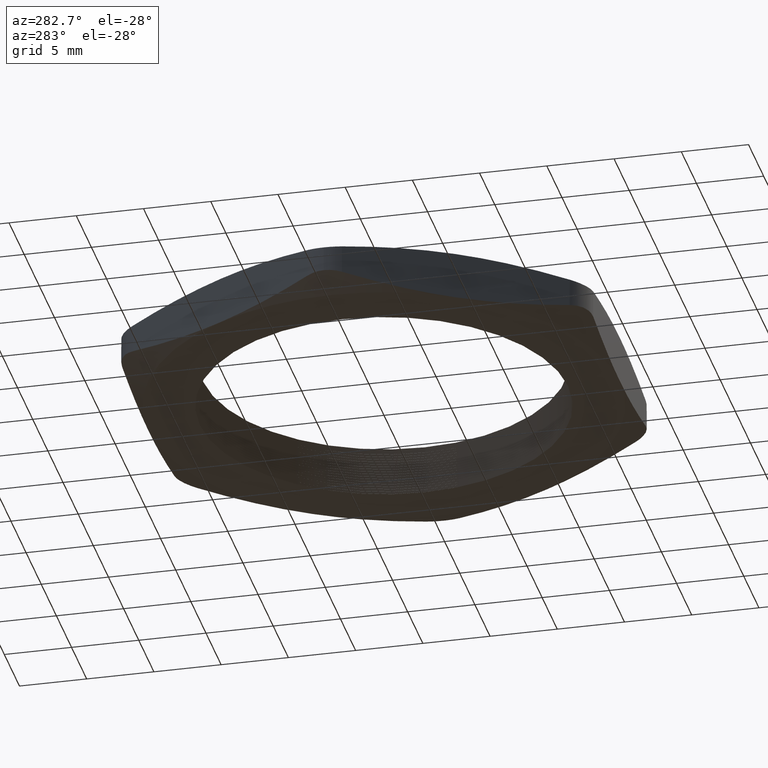
[diagram: clean part render]
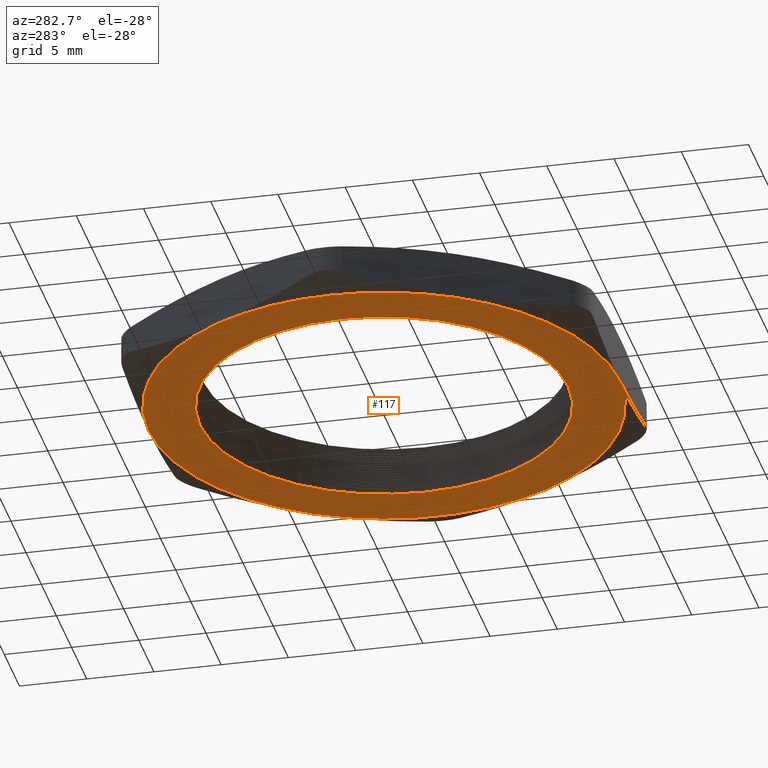
[diagram: same view with one face highlighted and labeled with its STEP entity id]
A machine part, auxiliary view. The second image highlights one B-rep face of the part: STEP entity #117.
In plain terms, the highlighted planar face has unit normal (0, 0, -1).
Its self-contained STEP definition (entity closure, byte-faithful):
#100 = EDGE_CURVE ( 'NONE', #611, #739, #1043, .T. ) ;
#101 = ORIENTED_EDGE ( 'NONE', *, *, #102, .T. ) ;
#102 = EDGE_CURVE ( 'NONE', #739, #805, #1038, .T. ) ;
#103 = ORIENTED_EDGE ( 'NONE', *, *, #104, .T. ) ;
#104 = EDGE_CURVE ( 'NONE', #805, #714, #1033, .T. ) ;
#105 = ORIENTED_EDGE ( 'NONE', *, *, #106, .T. ) ;
#106 = EDGE_CURVE ( 'NONE', #714, #762, #1028, .T. ) ;
#107 = ORIENTED_EDGE ( 'NONE', *, *, #108, .T. ) ;
#108 = EDGE_CURVE ( 'NONE', #762, #751, #1022, .T. ) ;
#117 = ADVANCED_FACE ( 'NONE', ( #1065, #1063 ), #1052, .T. ) ;
#118 = EDGE_LOOP ( 'NONE', ( #119, #120 ) ) ;
#119 = ORIENTED_EDGE ( 'NONE', *, *, #559, .F. ) ;
#120 = ORIENTED_EDGE ( 'NONE', *, *, #121, .F. ) ;
#121 = EDGE_CURVE ( 'NONE', #561, #560, #1109, .T. ) ;
#122 = EDGE_LOOP ( 'NONE', ( #123, #125, #126, #101, #103, #105, #107 ) ) ;
#123 = ORIENTED_EDGE ( 'NONE', *, *, #124, .T. ) ;
#124 = EDGE_CURVE ( 'NONE', #751, #610, #1104, .T. ) ;
#125 = ORIENTED_EDGE ( 'NONE', *, *, #609, .T. ) ;
#126 = ORIENTED_EDGE ( 'NONE', *, *, #100, .T. ) ;
#559 = EDGE_CURVE ( 'NONE', #560, #561, #1857, .T. ) ;
#560 = VERTEX_POINT ( 'NONE', #1853 ) ;
#561 = VERTEX_POINT ( 'NONE', #1852 ) ;
#609 = EDGE_CURVE ( 'NONE', #610, #611, #1935, .T. ) ;
#610 = VERTEX_POINT ( 'NONE', #1931 ) ;
#611 = VERTEX_POINT ( 'NONE', #1930 ) ;
#714 = VERTEX_POINT ( 'NONE', #2177 ) ;
#739 = VERTEX_POINT ( 'NONE', #2214 ) ;
#751 = VERTEX_POINT ( 'NONE', #2288 ) ;
#762 = VERTEX_POINT ( 'NONE', #2313 ) ;
#805 = VERTEX_POINT ( 'NONE', #2326 ) ;
#1018 = DIRECTION ( 'NONE',  ( -1.000000000000000000, 0.0000000000000000000, 0.0000000000000000000 ) ) ;
#1019 = DIRECTION ( 'NONE',  ( 0.0000000000000000000, 0.0000000000000000000, -1.000000000000000000 ) ) ;
#1020 = CARTESIAN_POINT ( 'NONE',  ( 0.0000000000000000000, 0.0000000000000000000, 0.0000000000000000000 ) ) ;
#1021 = AXIS2_PLACEMENT_3D ( 'NONE', #1020, #1019, #1018 ) ;
#1022 = CIRCLE ( 'NONE', #1021, 0.6899999999999998400 ) ;
#1024 = DIRECTION ( 'NONE',  ( -1.000000000000000000, 0.0000000000000000000, 0.0000000000000000000 ) ) ;
#1025 = DIRECTION ( 'NONE',  ( 0.0000000000000000000, 0.0000000000000000000, -1.000000000000000000 ) ) ;
#1026 = CARTESIAN_POINT ( 'NONE',  ( 0.0000000000000000000, 0.0000000000000000000, 0.0000000000000000000 ) ) ;
#1027 = AXIS2_PLACEMENT_3D ( 'NONE', #1026, #1025, #1024 ) ;
#1028 = CIRCLE ( 'NONE', #1027, 0.6899999999999998400 ) ;
#1029 = DIRECTION ( 'NONE',  ( -1.000000000000000000, 0.0000000000000000000, 0.0000000000000000000 ) ) ;
#1030 = DIRECTION ( 'NONE',  ( 0.0000000000000000000, 0.0000000000000000000, -1.000000000000000000 ) ) ;
#1031 = CARTESIAN_POINT ( 'NONE',  ( 0.0000000000000000000, 0.0000000000000000000, 0.0000000000000000000 ) ) ;
#1032 = AXIS2_PLACEMENT_3D ( 'NONE', #1031, #1030, #1029 ) ;
#1033 = CIRCLE ( 'NONE', #1032, 0.6899999999999998400 ) ;
#1034 = DIRECTION ( 'NONE',  ( -1.000000000000000000, 0.0000000000000000000, 0.0000000000000000000 ) ) ;
#1035 = DIRECTION ( 'NONE',  ( 0.0000000000000000000, 0.0000000000000000000, -1.000000000000000000 ) ) ;
#1036 = CARTESIAN_POINT ( 'NONE',  ( 0.0000000000000000000, 0.0000000000000000000, 0.0000000000000000000 ) ) ;
#1037 = AXIS2_PLACEMENT_3D ( 'NONE', #1036, #1035, #1034 ) ;
#1038 = CIRCLE ( 'NONE', #1037, 0.6899999999999998400 ) ;
#1039 = DIRECTION ( 'NONE',  ( -1.000000000000000000, 0.0000000000000000000, 0.0000000000000000000 ) ) ;
#1040 = DIRECTION ( 'NONE',  ( 0.0000000000000000000, 0.0000000000000000000, -1.000000000000000000 ) ) ;
#1041 = CARTESIAN_POINT ( 'NONE',  ( 0.0000000000000000000, 0.0000000000000000000, 0.0000000000000000000 ) ) ;
#1042 = AXIS2_PLACEMENT_3D ( 'NONE', #1041, #1040, #1039 ) ;
#1043 = CIRCLE ( 'NONE', #1042, 0.6900000000000000600 ) ;
#1048 = DIRECTION ( 'NONE',  ( -1.000000000000000000, 0.0000000000000000000, 0.0000000000000000000 ) ) ;
#1049 = DIRECTION ( 'NONE',  ( 0.0000000000000000000, 0.0000000000000000000, -1.000000000000000000 ) ) ;
#1050 = CARTESIAN_POINT ( 'NONE',  ( -0.3983716857408418100, 0.6900000000000000600, 0.0000000000000000000 ) ) ;
#1051 = AXIS2_PLACEMENT_3D ( 'NONE', #1050, #1049, #1048 ) ;
#1052 = PLANE ( 'NONE',  #1051 ) ;
#1063 = FACE_OUTER_BOUND ( 'NONE', #122, .T. ) ;
#1065 = FACE_BOUND ( 'NONE', #118, .T. ) ;
#1101 = DIRECTION ( 'NONE',  ( -1.000000000000000000, 0.0000000000000000000, 0.0000000000000000000 ) ) ;
#1102 = DIRECTION ( 'NONE',  ( 0.0000000000000000000, 0.0000000000000000000, -1.000000000000000000 ) ) ;
#1103 = AXIS2_PLACEMENT_3D ( 'NONE', #1110, #1102, #1101 ) ;
#1104 = CIRCLE ( 'NONE', #1103, 0.6899999999999998400 ) ;
#1105 = DIRECTION ( 'NONE',  ( -1.000000000000000000, 0.0000000000000000000, 0.0000000000000000000 ) ) ;
#1106 = DIRECTION ( 'NONE',  ( 0.0000000000000000000, 0.0000000000000000000, -1.000000000000000000 ) ) ;
#1107 = CARTESIAN_POINT ( 'NONE',  ( 0.0000000000000000000, 0.0000000000000000000, 0.0000000000000000000 ) ) ;
#1108 = AXIS2_PLACEMENT_3D ( 'NONE', #1107, #1106, #1105 ) ;
#1109 = CIRCLE ( 'NONE', #1108, 0.5392153903091730900 ) ;
#1110 = CARTESIAN_POINT ( 'NONE',  ( 0.0000000000000000000, 0.0000000000000000000, 0.0000000000000000000 ) ) ;
#1805 = CARTESIAN_POINT ( 'NONE',  ( 0.0000000000000000000, 0.0000000000000000000, 0.0000000000000000000 ) ) ;
#1852 = CARTESIAN_POINT ( 'NONE',  ( -0.5392153903091730900, 6.638904536642135900E-017, 0.0000000000000000000 ) ) ;
#1853 = CARTESIAN_POINT ( 'NONE',  ( 0.5392153903091730900, 0.0000000000000000000, 0.0000000000000000000 ) ) ;
#1854 = DIRECTION ( 'NONE',  ( -1.000000000000000000, 0.0000000000000000000, 0.0000000000000000000 ) ) ;
#1855 = DIRECTION ( 'NONE',  ( 0.0000000000000000000, 0.0000000000000000000, -1.000000000000000000 ) ) ;
#1856 = AXIS2_PLACEMENT_3D ( 'NONE', #1805, #1855, #1854 ) ;
#1857 = CIRCLE ( 'NONE', #1856, 0.5392153903091730900 ) ;
#1930 = CARTESIAN_POINT ( 'NONE',  ( -0.5975575286112626600, 0.3450000000000000800, 0.0000000000000000000 ) ) ;
#1931 = CARTESIAN_POINT ( 'NONE',  ( -0.6899999999999998400, 0.0000000000000000000, 0.0000000000000000000 ) ) ;
#1932 = DIRECTION ( 'NONE',  ( -1.000000000000000000, 0.0000000000000000000, 0.0000000000000000000 ) ) ;
#1933 = DIRECTION ( 'NONE',  ( 0.0000000000000000000, 0.0000000000000000000, -1.000000000000000000 ) ) ;
#1934 = AXIS2_PLACEMENT_3D ( 'NONE', #1939, #1933, #1932 ) ;
#1935 = CIRCLE ( 'NONE', #1934, 0.6899999999999998400 ) ;
#1939 = CARTESIAN_POINT ( 'NONE',  ( 0.0000000000000000000, 0.0000000000000000000, 0.0000000000000000000 ) ) ;
#2177 = CARTESIAN_POINT ( 'NONE',  ( 0.5975575286112626600, -0.3450000000000000300, 0.0000000000000000000 ) ) ;
#2214 = CARTESIAN_POINT ( 'NONE',  ( 1.182924880895401300E-016, 0.6900000000000000600, 0.0000000000000000000 ) ) ;
#2288 = CARTESIAN_POINT ( 'NONE',  ( -0.5975575286112626600, -0.3449999999999998600, 0.0000000000000000000 ) ) ;
#2313 = CARTESIAN_POINT ( 'NONE',  ( 1.182924880895400800E-016, -0.6900000000000000600, 0.0000000000000000000 ) ) ;
#2326 = CARTESIAN_POINT ( 'NONE',  ( 0.5975575286112627700, 0.3449999999999998600, 0.0000000000000000000 ) ) ;